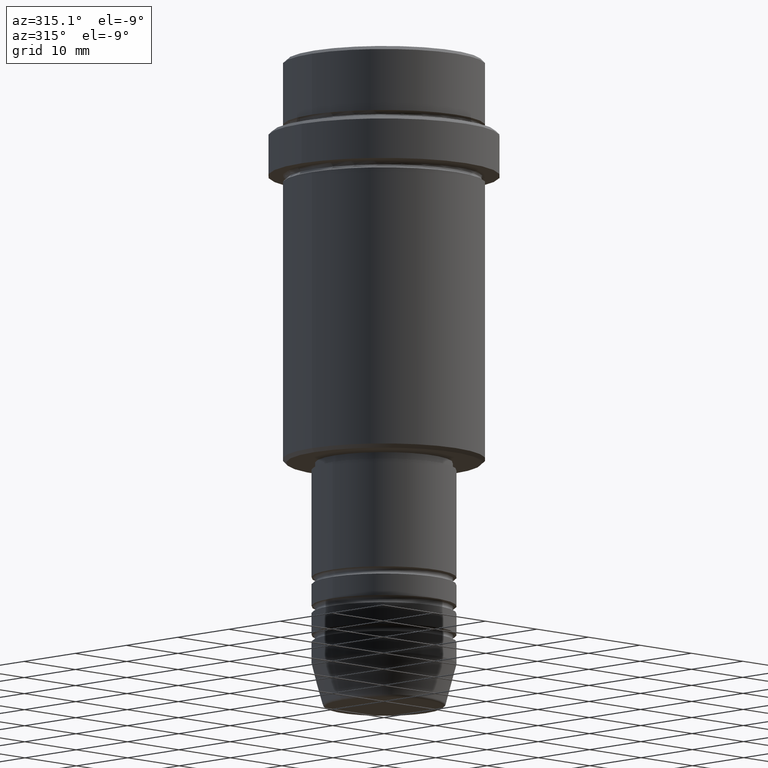
[diagram: clean part render]
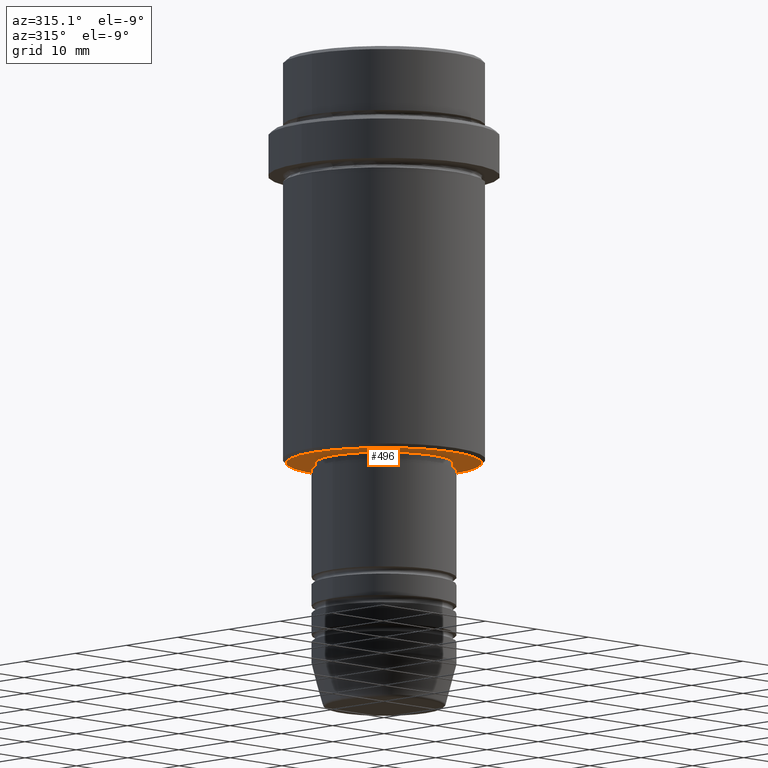
[diagram: same view with one face highlighted and labeled with its STEP entity id]
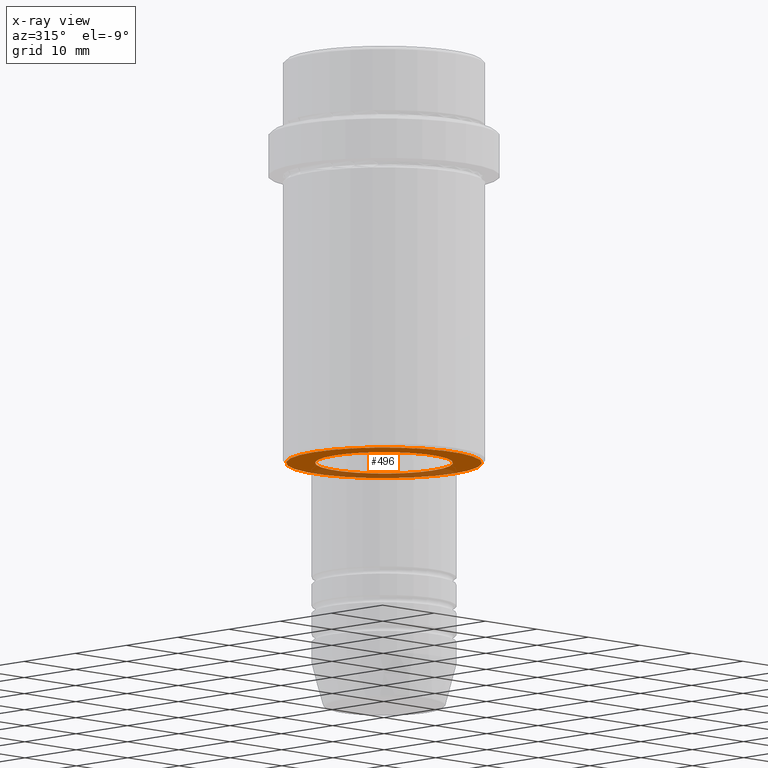
[diagram: x-ray of the same camera — body ghosted, the highlighted face saturated]
A machine part, auxiliary view. The second image highlights one B-rep face of the part: STEP entity #496.
The next image is the same camera in x-ray: the body ghosted, the highlighted face saturated — about 30% of this face is hidden behind the body in this view.
In plain terms, the highlighted planar face has unit normal (0, 0, -1).
Its self-contained STEP definition (entity closure, byte-faithful):
#36 = AXIS2_PLACEMENT_3D ( 'NONE', #417, #1234, #534 ) ;
#130 = CARTESIAN_POINT ( 'NONE',  ( -9.499999999999996447, 1.163414459189985091E-15, -56.00000000000000000 ) ) ;
#182 = PLANE ( 'NONE',  #36 ) ;
#191 = CIRCLE ( 'NONE', #264, 13.49999999999999112 ) ;
#226 = CARTESIAN_POINT ( 'NONE',  ( -13.49999999999999112, 1.683889348827610062E-15, -56.00000000000000000 ) ) ;
#232 = CARTESIAN_POINT ( 'NONE',  ( 0.000000000000000000, 0.000000000000000000, -56.00000000000000000 ) ) ;
#244 = CARTESIAN_POINT ( 'NONE',  ( 0.000000000000000000, 0.000000000000000000, -56.00000000000000000 ) ) ;
#264 = AXIS2_PLACEMENT_3D ( 'NONE', #641, #1183, #972 ) ;
#316 = CIRCLE ( 'NONE', #541, 9.499999999999996447 ) ;
#360 = CIRCLE ( 'NONE', #1371, 9.499999999999996447 ) ;
#409 = ORIENTED_EDGE ( 'NONE', *, *, #585, .T. ) ;
#417 = CARTESIAN_POINT ( 'NONE',  ( 0.000000000000000000, 14.00000000000000000, -56.00000000000000000 ) ) ;
#435 = EDGE_LOOP ( 'NONE', ( #1325, #409 ) ) ;
#465 = DIRECTION ( 'NONE',  ( 1.000000000000000000, 0.000000000000000000, 0.000000000000000000 ) ) ;
#496 = ADVANCED_FACE ( 'NONE', ( #561, #1401 ), #182, .T. ) ;
#534 = DIRECTION ( 'NONE',  ( -1.000000000000000000, 0.000000000000000000, -0.000000000000000000 ) ) ;
#541 = AXIS2_PLACEMENT_3D ( 'NONE', #244, #717, #465 ) ;
#561 = FACE_OUTER_BOUND ( 'NONE', #435, .T. ) ;
#581 = DIRECTION ( 'NONE',  ( -0.000000000000000000, -0.000000000000000000, 1.000000000000000000 ) ) ;
#585 = EDGE_CURVE ( 'NONE', #1199, #924, #191, .T. ) ;
#641 = CARTESIAN_POINT ( 'NONE',  ( 0.000000000000000000, 0.000000000000000000, -56.00000000000000000 ) ) ;
#670 = DIRECTION ( 'NONE',  ( -1.000000000000000000, 0.000000000000000000, 0.000000000000000000 ) ) ;
#675 = VERTEX_POINT ( 'NONE', #1402 ) ;
#683 = DIRECTION ( 'NONE',  ( 0.000000000000000000, 0.000000000000000000, -1.000000000000000000 ) ) ;
#717 = DIRECTION ( 'NONE',  ( -0.000000000000000000, -0.000000000000000000, 1.000000000000000000 ) ) ;
#789 = DIRECTION ( 'NONE',  ( 1.000000000000000000, 0.000000000000000000, 0.000000000000000000 ) ) ;
#837 = ORIENTED_EDGE ( 'NONE', *, *, #1228, .T. ) ;
#849 = CIRCLE ( 'NONE', #1037, 13.49999999999999112 ) ;
#924 = VERTEX_POINT ( 'NONE', #1004 ) ;
#972 = DIRECTION ( 'NONE',  ( -1.000000000000000000, 0.000000000000000000, 0.000000000000000000 ) ) ;
#976 = VERTEX_POINT ( 'NONE', #130 ) ;
#997 = EDGE_CURVE ( 'NONE', #675, #976, #360, .T. ) ;
#1004 = CARTESIAN_POINT ( 'NONE',  ( 13.49999999999999112, 0.000000000000000000, -56.00000000000000000 ) ) ;
#1037 = AXIS2_PLACEMENT_3D ( 'NONE', #232, #683, #670 ) ;
#1045 = ORIENTED_EDGE ( 'NONE', *, *, #997, .T. ) ;
#1108 = EDGE_LOOP ( 'NONE', ( #1045, #837 ) ) ;
#1161 = CARTESIAN_POINT ( 'NONE',  ( 0.000000000000000000, 0.000000000000000000, -56.00000000000000000 ) ) ;
#1163 = EDGE_CURVE ( 'NONE', #924, #1199, #849, .T. ) ;
#1183 = DIRECTION ( 'NONE',  ( 0.000000000000000000, 0.000000000000000000, -1.000000000000000000 ) ) ;
#1199 = VERTEX_POINT ( 'NONE', #226 ) ;
#1228 = EDGE_CURVE ( 'NONE', #976, #675, #316, .T. ) ;
#1234 = DIRECTION ( 'NONE',  ( 0.000000000000000000, 0.000000000000000000, -1.000000000000000000 ) ) ;
#1325 = ORIENTED_EDGE ( 'NONE', *, *, #1163, .T. ) ;
#1371 = AXIS2_PLACEMENT_3D ( 'NONE', #1161, #581, #789 ) ;
#1401 = FACE_BOUND ( 'NONE', #1108, .T. ) ;
#1402 = CARTESIAN_POINT ( 'NONE',  ( 9.499999999999996447, 0.000000000000000000, -56.00000000000000000 ) ) ;